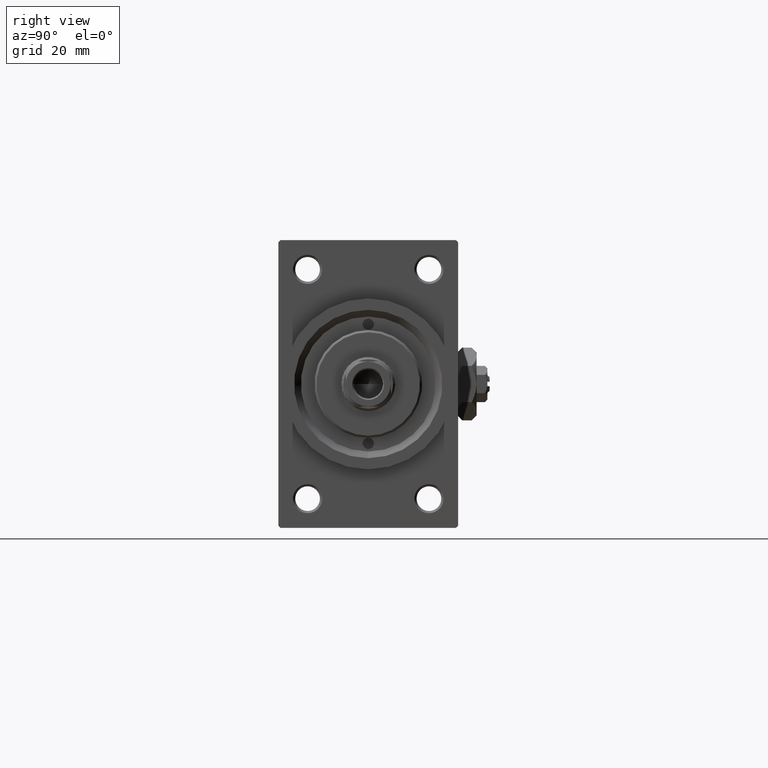
[diagram: clean part render]
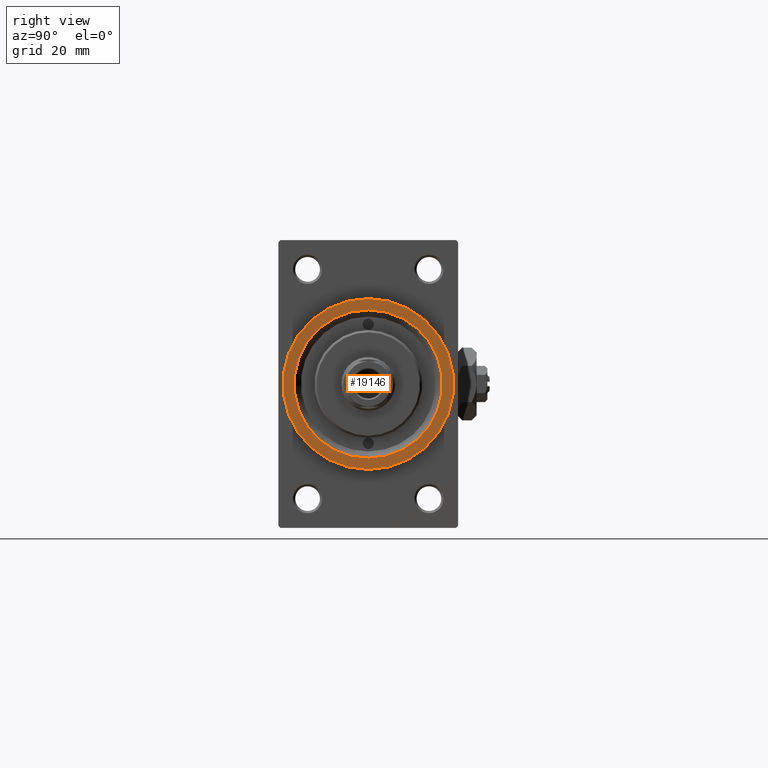
[diagram: same view with one face highlighted and labeled with its STEP entity id]
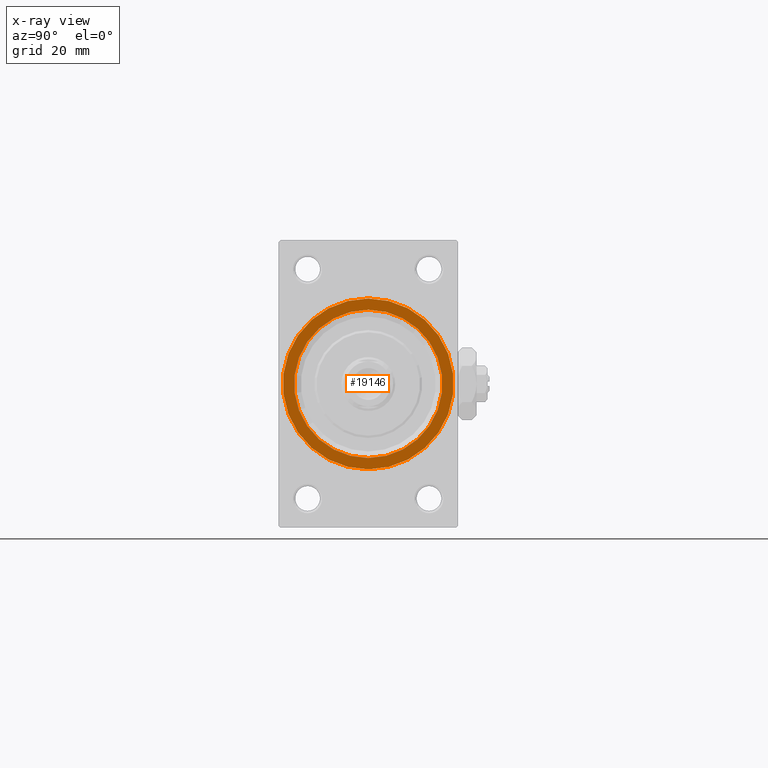
[diagram: x-ray of the same camera — body ghosted, the highlighted face saturated]
A machine part, right view. The second image highlights one B-rep face of the part: STEP entity #19146.
The next image is the same camera in x-ray: the body ghosted, the highlighted face saturated — about 0% of this face is hidden behind the body in this view.
In plain terms, the highlighted planar face has unit normal (1, 0, 0).
Its self-contained STEP definition (entity closure, byte-faithful):
#50 = AXIS2_PLACEMENT_3D ( 'NONE', #38704, #4021, #15663 ) ;
#97 = CARTESIAN_POINT ( 'NONE',  ( 119.0000000000000142, 0.000000000000000000, 0.000000000000000000 ) ) ;
#1249 = VERTEX_POINT ( 'NONE', #3385 ) ;
#1349 = ORIENTED_EDGE ( 'NONE', *, *, #22946, .T. ) ;
#1908 = AXIS2_PLACEMENT_3D ( 'NONE', #41370, #15097, #29968 ) ;
#2264 = EDGE_CURVE ( 'NONE', #42268, #38508, #3502, .T. ) ;
#2844 = EDGE_CURVE ( 'NONE', #19306, #1249, #23256, .T. ) ;
#3210 = CIRCLE ( 'NONE', #50, 19.00000000000000000 ) ;
#3385 = CARTESIAN_POINT ( 'NONE',  ( 119.0000000000000142, 2.020667218593132706E-15, 16.50000000000000000 ) ) ;
#3502 = CIRCLE ( 'NONE', #1908, 19.00000000000000000 ) ;
#3823 = DIRECTION ( 'NONE',  ( 0.000000000000000000, 0.000000000000000000, -1.000000000000000000 ) ) ;
#4021 = DIRECTION ( 'NONE',  ( 1.000000000000000000, 0.000000000000000000, 0.000000000000000000 ) ) ;
#4103 = EDGE_LOOP ( 'NONE', ( #24233, #17958 ) ) ;
#5034 = DIRECTION ( 'NONE',  ( 0.000000000000000000, 0.000000000000000000, -1.000000000000000000 ) ) ;
#8217 = CARTESIAN_POINT ( 'NONE',  ( 119.0000000000000142, 0.000000000000000000, -16.50000000000000000 ) ) ;
#12588 = CIRCLE ( 'NONE', #43428, 16.50000000000000000 ) ;
#12729 = PLANE ( 'NONE',  #18137 ) ;
#15097 = DIRECTION ( 'NONE',  ( 1.000000000000000000, 0.000000000000000000, 0.000000000000000000 ) ) ;
#15649 = DIRECTION ( 'NONE',  ( 0.000000000000000000, 0.000000000000000000, -1.000000000000000000 ) ) ;
#15663 = DIRECTION ( 'NONE',  ( 0.000000000000000000, 0.000000000000000000, -1.000000000000000000 ) ) ;
#17958 = ORIENTED_EDGE ( 'NONE', *, *, #18240, .T. ) ;
#18137 = AXIS2_PLACEMENT_3D ( 'NONE', #23856, #38984, #5034 ) ;
#18240 = EDGE_CURVE ( 'NONE', #1249, #19306, #12588, .T. ) ;
#19146 = ADVANCED_FACE ( 'NONE', ( #35512, #39484 ), #12729, .T. ) ;
#19306 = VERTEX_POINT ( 'NONE', #8217 ) ;
#21168 = CARTESIAN_POINT ( 'NONE',  ( 119.0000000000000142, 0.000000000000000000, 19.00000000000000000 ) ) ;
#22946 = EDGE_CURVE ( 'NONE', #38508, #42268, #3210, .T. ) ;
#23256 = CIRCLE ( 'NONE', #29606, 16.50000000000000000 ) ;
#23856 = CARTESIAN_POINT ( 'NONE',  ( 119.0000000000000142, 0.000000000000000000, 0.000000000000000000 ) ) ;
#24233 = ORIENTED_EDGE ( 'NONE', *, *, #2844, .T. ) ;
#29606 = AXIS2_PLACEMENT_3D ( 'NONE', #45395, #34471, #15649 ) ;
#29968 = DIRECTION ( 'NONE',  ( 0.000000000000000000, 0.000000000000000000, -1.000000000000000000 ) ) ;
#34471 = DIRECTION ( 'NONE',  ( -1.000000000000000000, -0.000000000000000000, -0.000000000000000000 ) ) ;
#35512 = FACE_BOUND ( 'NONE', #4103, .T. ) ;
#37758 = DIRECTION ( 'NONE',  ( -1.000000000000000000, -0.000000000000000000, -0.000000000000000000 ) ) ;
#38456 = ORIENTED_EDGE ( 'NONE', *, *, #2264, .T. ) ;
#38508 = VERTEX_POINT ( 'NONE', #43570 ) ;
#38704 = CARTESIAN_POINT ( 'NONE',  ( 119.0000000000000142, 0.000000000000000000, 0.000000000000000000 ) ) ;
#38984 = DIRECTION ( 'NONE',  ( 1.000000000000000000, 0.000000000000000000, 0.000000000000000000 ) ) ;
#39484 = FACE_OUTER_BOUND ( 'NONE', #42838, .T. ) ;
#41370 = CARTESIAN_POINT ( 'NONE',  ( 119.0000000000000142, 0.000000000000000000, 0.000000000000000000 ) ) ;
#42268 = VERTEX_POINT ( 'NONE', #21168 ) ;
#42838 = EDGE_LOOP ( 'NONE', ( #38456, #1349 ) ) ;
#43428 = AXIS2_PLACEMENT_3D ( 'NONE', #97, #37758, #3823 ) ;
#43570 = CARTESIAN_POINT ( 'NONE',  ( 119.0000000000000142, 2.326828918379970970E-15, -19.00000000000000000 ) ) ;
#45395 = CARTESIAN_POINT ( 'NONE',  ( 119.0000000000000142, 0.000000000000000000, 0.000000000000000000 ) ) ;